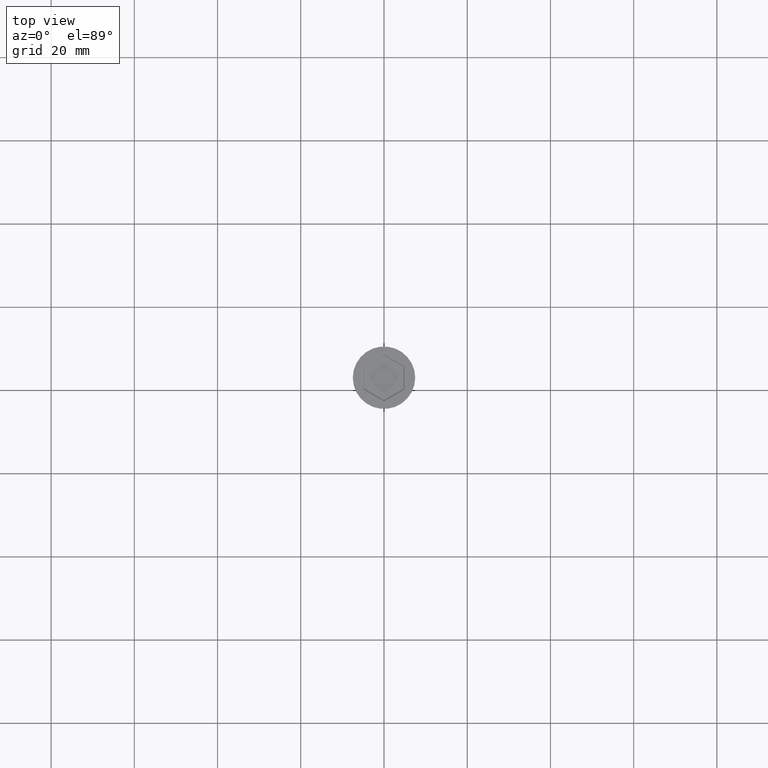
[diagram: clean part render]
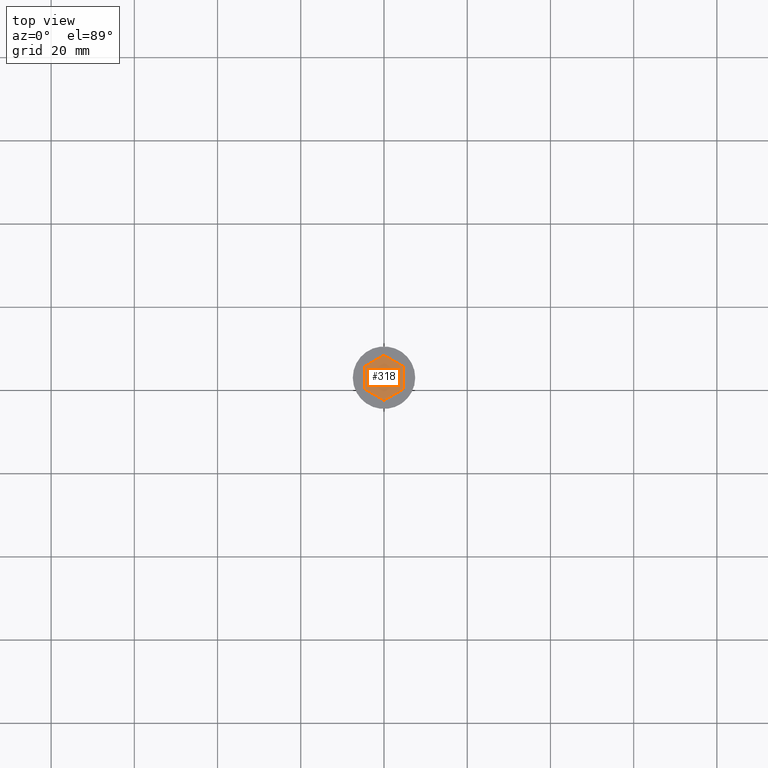
[diagram: same view with one face highlighted and labeled with its STEP entity id]
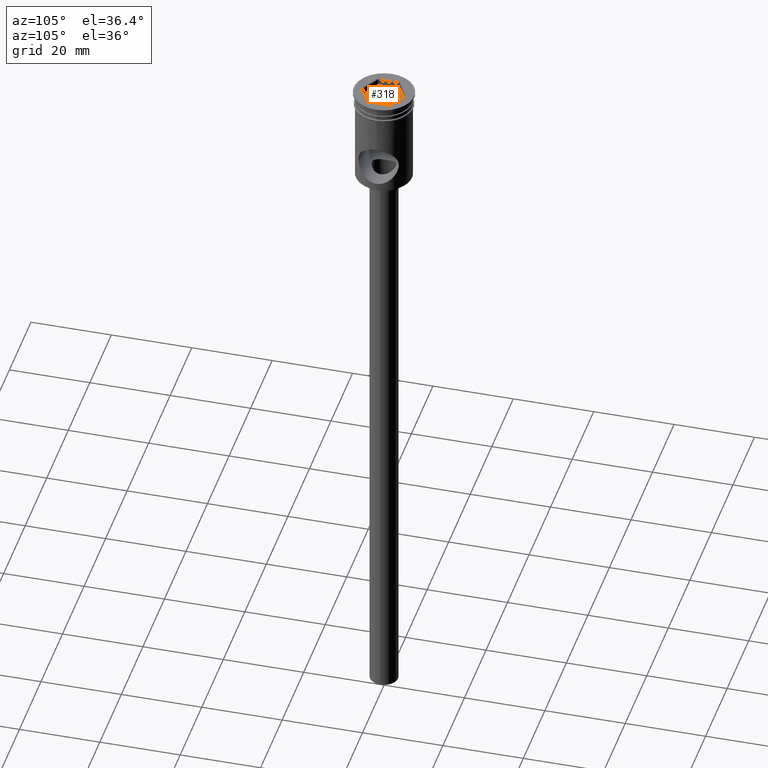
[diagram: same view with one face highlighted and labeled with its STEP entity id]
A machine part, top view. The second image highlights one B-rep face of the part: STEP entity #318.
A second angle (auxiliary view) of the same face is appended — the face is thin or edge-on in the first view.
In plain terms, the highlighted planar face has unit normal (-0, 0, 1).
Its self-contained STEP definition (entity closure, byte-faithful):
#9 = ORIENTED_EDGE ( 'NONE', *, *, #552, .T. ) ;
#10 = CARTESIAN_POINT ( 'NONE',  ( 4.699999999999998401, -2.713546265191241869, -2.000000000000000000 ) ) ;
#82 = VERTEX_POINT ( 'NONE', #1320 ) ;
#109 = EDGE_CURVE ( 'NONE', #82, #1186, #757, .T. ) ;
#145 = ORIENTED_EDGE ( 'NONE', *, *, #681, .T. ) ;
#169 = DIRECTION ( 'NONE',  ( 0.8660254037844385966, -0.5000000000000001110, 0.000000000000000000 ) ) ;
#209 = ORIENTED_EDGE ( 'NONE', *, *, #109, .T. ) ;
#231 = VECTOR ( 'NONE', #383, 1000.000000000000227 ) ;
#318 = ADVANCED_FACE ( 'NONE', ( #1472 ), #1118, .T. ) ;
#383 = DIRECTION ( 'NONE',  ( -0.8660254037844385966, -0.4999999999999998890, 0.000000000000000000 ) ) ;
#385 = VERTEX_POINT ( 'NONE', #10 ) ;
#443 = LINE ( 'NONE', #787, #1390 ) ;
#470 = EDGE_CURVE ( 'NONE', #1154, #1488, #493, .T. ) ;
#493 = LINE ( 'NONE', #949, #231 ) ;
#503 = VECTOR ( 'NONE', #753, 1000.000000000000000 ) ;
#524 = DIRECTION ( 'NONE',  ( -0.000000000000000000, 0.000000000000000000, 1.000000000000000000 ) ) ;
#527 = VECTOR ( 'NONE', #935, 1000.000000000000227 ) ;
#542 = LINE ( 'NONE', #1122, #503 ) ;
#552 = EDGE_CURVE ( 'NONE', #1488, #82, #542, .T. ) ;
#564 = LINE ( 'NONE', #1349, #1175 ) ;
#575 = DIRECTION ( 'NONE',  ( -0.8660254037844385966, 0.5000000000000000000, 0.000000000000000000 ) ) ;
#642 = AXIS2_PLACEMENT_3D ( 'NONE', #762, #524, #889 ) ;
#649 = EDGE_LOOP ( 'NONE', ( #1238, #1058, #9, #209, #1458, #145 ) ) ;
#681 = EDGE_CURVE ( 'NONE', #385, #1428, #564, .T. ) ;
#690 = DIRECTION ( 'NONE',  ( 1.598207019933148115E-16, 1.000000000000000000, 0.000000000000000000 ) ) ;
#753 = DIRECTION ( 'NONE',  ( 0.000000000000000000, -1.000000000000000000, 0.000000000000000000 ) ) ;
#757 = LINE ( 'NONE', #1213, #834 ) ;
#762 = CARTESIAN_POINT ( 'NONE',  ( 0.000000000000000000, 0.000000000000000000, -2.000000000000000000 ) ) ;
#787 = CARTESIAN_POINT ( 'NONE',  ( 4.699999999999999289, 2.713546265191240092, -2.000000000000000000 ) ) ;
#834 = VECTOR ( 'NONE', #169, 1000.000000000000000 ) ;
#877 = CARTESIAN_POINT ( 'NONE',  ( 4.699999999999999289, 2.713546265191240092, -2.000000000000000000 ) ) ;
#889 = DIRECTION ( 'NONE',  ( 1.000000000000000000, 0.000000000000000000, 0.000000000000000000 ) ) ;
#935 = DIRECTION ( 'NONE',  ( 0.8660254037844385966, 0.4999999999999998890, 0.000000000000000000 ) ) ;
#949 = CARTESIAN_POINT ( 'NONE',  ( 0.000000000000000000, 5.427092530382481073, -2.000000000000000000 ) ) ;
#958 = LINE ( 'NONE', #1050, #527 ) ;
#977 = CARTESIAN_POINT ( 'NONE',  ( -4.699999999999999289, 2.713546265191240536, -2.000000000000000000 ) ) ;
#1050 = CARTESIAN_POINT ( 'NONE',  ( -8.673617379884035472E-16, -5.427092530382482849, -2.000000000000000000 ) ) ;
#1058 = ORIENTED_EDGE ( 'NONE', *, *, #470, .T. ) ;
#1118 = PLANE ( 'NONE',  #642 ) ;
#1122 = CARTESIAN_POINT ( 'NONE',  ( -4.699999999999999289, 2.713546265191240536, -2.000000000000000000 ) ) ;
#1153 = EDGE_CURVE ( 'NONE', #1428, #1154, #443, .T. ) ;
#1154 = VERTEX_POINT ( 'NONE', #1491 ) ;
#1175 = VECTOR ( 'NONE', #690, 1000.000000000000000 ) ;
#1186 = VERTEX_POINT ( 'NONE', #1381 ) ;
#1213 = CARTESIAN_POINT ( 'NONE',  ( -4.699999999999999289, -2.713546265191241424, -2.000000000000000000 ) ) ;
#1238 = ORIENTED_EDGE ( 'NONE', *, *, #1153, .T. ) ;
#1262 = EDGE_CURVE ( 'NONE', #1186, #385, #958, .T. ) ;
#1320 = CARTESIAN_POINT ( 'NONE',  ( -4.699999999999999289, -2.713546265191241424, -2.000000000000000000 ) ) ;
#1349 = CARTESIAN_POINT ( 'NONE',  ( 4.699999999999998401, -2.713546265191241869, -2.000000000000000000 ) ) ;
#1381 = CARTESIAN_POINT ( 'NONE',  ( -8.673617379884035472E-16, -5.427092530382482849, -2.000000000000000000 ) ) ;
#1390 = VECTOR ( 'NONE', #575, 1000.000000000000227 ) ;
#1428 = VERTEX_POINT ( 'NONE', #877 ) ;
#1458 = ORIENTED_EDGE ( 'NONE', *, *, #1262, .T. ) ;
#1472 = FACE_OUTER_BOUND ( 'NONE', #649, .T. ) ;
#1488 = VERTEX_POINT ( 'NONE', #977 ) ;
#1491 = CARTESIAN_POINT ( 'NONE',  ( 0.000000000000000000, 5.427092530382481073, -2.000000000000000000 ) ) ;